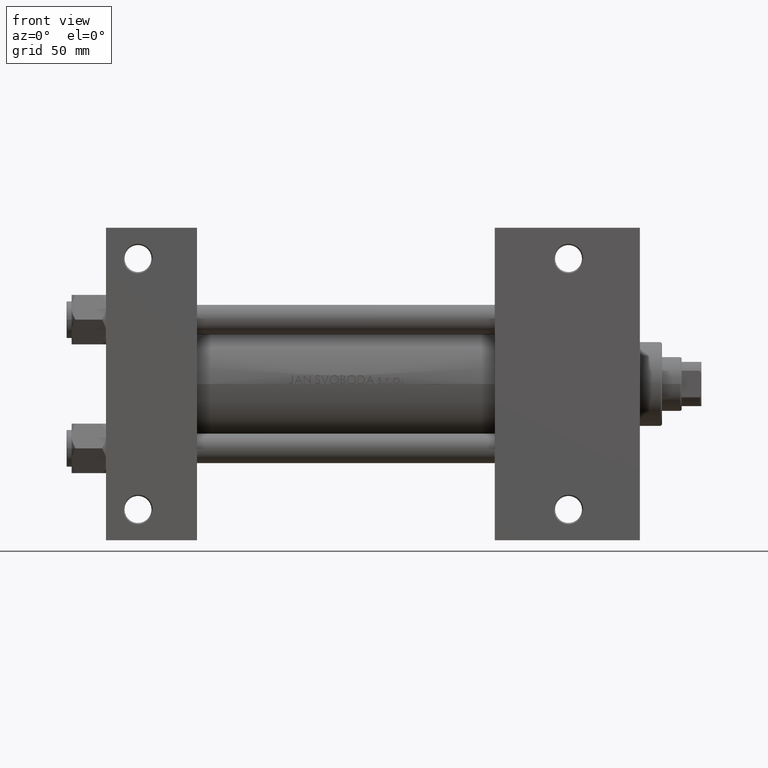
[diagram: clean part render]
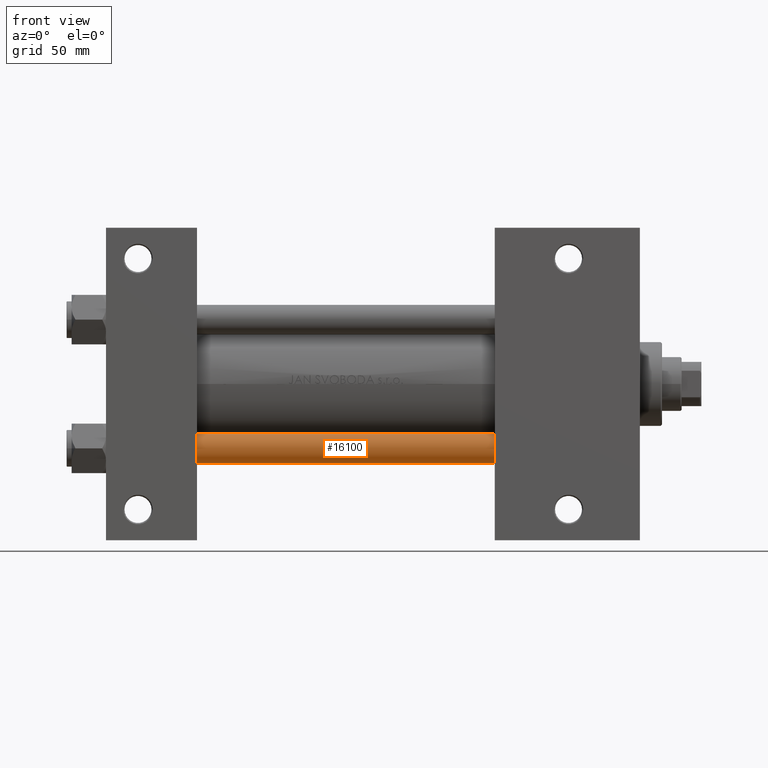
[diagram: same view with one face highlighted and labeled with its STEP entity id]
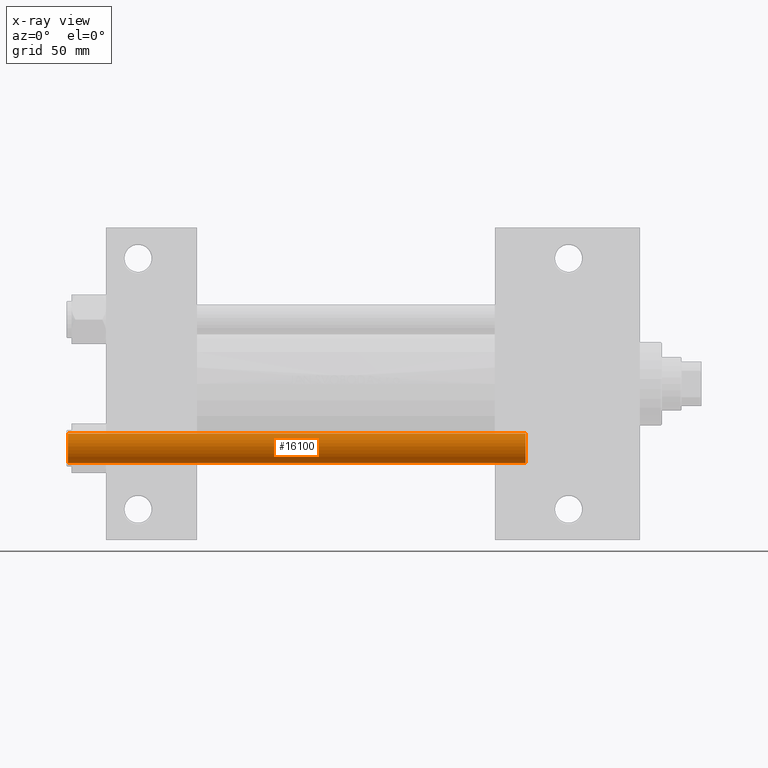
[diagram: x-ray of the same camera — body ghosted, the highlighted face saturated]
A machine part, front view. The second image highlights one B-rep face of the part: STEP entity #16100.
The next image is the same camera in x-ray: the body ghosted, the highlighted face saturated — about 0% of this face is hidden behind the body in this view.
In plain terms, the highlighted cylindrical surface (edge-blend (fillet) strip) has radius 6 mm, axis along (-1, 0, 0).
Its self-contained STEP definition (entity closure, byte-faithful):
#553 = AXIS2_PLACEMENT_3D ( 'NONE', #28210, #12781, #1061 ) ;
#1061 = DIRECTION ( 'NONE',  ( 1.000000000000000000, 0.000000000000000000, 0.000000000000000000 ) ) ;
#1097 = CYLINDRICAL_SURFACE ( 'NONE', #24558, 6.000000000000000888 ) ;
#1530 = CARTESIAN_POINT ( 'NONE',  ( 6.000000000000000888, 7.347880794884120722E-16, 187.0000000000000000 ) ) ;
#8412 = VECTOR ( 'NONE', #30375, 1000.000000000000000 ) ;
#8852 = EDGE_CURVE ( 'NONE', #43897, #14227, #49294, .T. ) ;
#8962 = ORIENTED_EDGE ( 'NONE', *, *, #8852, .F. ) ;
#9288 = DIRECTION ( 'NONE',  ( 1.000000000000000000, 0.000000000000000000, 0.000000000000000000 ) ) ;
#12240 = DIRECTION ( 'NONE',  ( -0.000000000000000000, -0.000000000000000000, -1.000000000000000000 ) ) ;
#12659 = EDGE_CURVE ( 'NONE', #41069, #14227, #48283, .T. ) ;
#12781 = DIRECTION ( 'NONE',  ( -0.000000000000000000, -0.000000000000000000, 1.000000000000000000 ) ) ;
#14227 = VERTEX_POINT ( 'NONE', #48474 ) ;
#16100 = ADVANCED_FACE ( 'NONE', ( #47410 ), #1097, .T. ) ;
#17045 = DIRECTION ( 'NONE',  ( -1.000000000000000000, 0.000000000000000000, 0.000000000000000000 ) ) ;
#18411 = VERTEX_POINT ( 'NONE', #25954 ) ;
#18502 = EDGE_CURVE ( 'NONE', #18411, #41069, #20460, .T. ) ;
#19035 = VECTOR ( 'NONE', #12240, 1000.000000000000000 ) ;
#20460 = LINE ( 'NONE', #1530, #19035 ) ;
#20781 = DIRECTION ( 'NONE',  ( -0.000000000000000000, -0.000000000000000000, -1.000000000000000000 ) ) ;
#24558 = AXIS2_PLACEMENT_3D ( 'NONE', #39957, #20781, #17045 ) ;
#25954 = CARTESIAN_POINT ( 'NONE',  ( 6.000000000000000888, 7.347880794884120722E-16, 186.5000000000000284 ) ) ;
#28210 = CARTESIAN_POINT ( 'NONE',  ( 0.000000000000000000, 0.000000000000000000, 0.5000000000000281997 ) ) ;
#29720 = EDGE_CURVE ( 'NONE', #43897, #18411, #42054, .T. ) ;
#29798 = ORIENTED_EDGE ( 'NONE', *, *, #12659, .T. ) ;
#30375 = DIRECTION ( 'NONE',  ( -0.000000000000000000, -0.000000000000000000, -1.000000000000000000 ) ) ;
#31395 = CARTESIAN_POINT ( 'NONE',  ( 6.000000000000000888, 7.347880794884120722E-16, 0.5000000000000281997 ) ) ;
#34331 = ORIENTED_EDGE ( 'NONE', *, *, #18502, .T. ) ;
#35765 = EDGE_LOOP ( 'NONE', ( #41251, #34331, #29798, #8962 ) ) ;
#37860 = CARTESIAN_POINT ( 'NONE',  ( -6.000000000000000888, 0.000000000000000000, 187.0000000000000000 ) ) ;
#39957 = CARTESIAN_POINT ( 'NONE',  ( 0.000000000000000000, 0.000000000000000000, 187.0000000000000000 ) ) ;
#40409 = CARTESIAN_POINT ( 'NONE',  ( 0.000000000000000000, 0.000000000000000000, 186.5000000000000284 ) ) ;
#41069 = VERTEX_POINT ( 'NONE', #31395 ) ;
#41251 = ORIENTED_EDGE ( 'NONE', *, *, #29720, .T. ) ;
#42054 = CIRCLE ( 'NONE', #46014, 6.000000000000000888 ) ;
#43400 = DIRECTION ( 'NONE',  ( 0.000000000000000000, 0.000000000000000000, -1.000000000000000000 ) ) ;
#43897 = VERTEX_POINT ( 'NONE', #48018 ) ;
#46014 = AXIS2_PLACEMENT_3D ( 'NONE', #40409, #43400, #9288 ) ;
#47410 = FACE_OUTER_BOUND ( 'NONE', #35765, .T. ) ;
#48018 = CARTESIAN_POINT ( 'NONE',  ( -6.000000000000000888, 0.000000000000000000, 186.5000000000000284 ) ) ;
#48283 = CIRCLE ( 'NONE', #553, 6.000000000000000888 ) ;
#48474 = CARTESIAN_POINT ( 'NONE',  ( -6.000000000000000888, 0.000000000000000000, 0.5000000000000281997 ) ) ;
#49294 = LINE ( 'NONE', #37860, #8412 ) ;